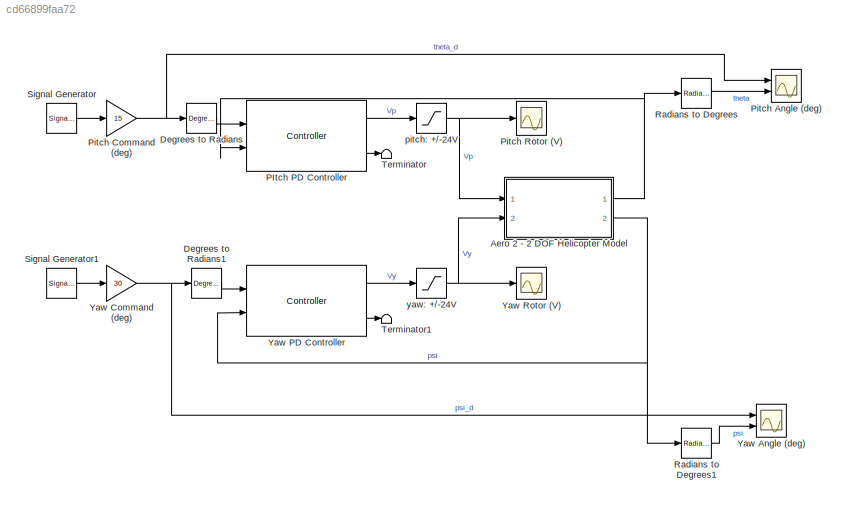
MODEL slx_cd66899faa72
KIND model
CONFIG AbsTol = auto
CONFIG EnableMultiTasking = off
CONFIG FixedStep = 0.002
CONFIG MaxStep = auto
CONFIG MinStep = auto
CONFIG RelTol = 1e-3
CONFIG SampleTimeConstraint = Unconstrained
CONFIG SolverName = ode4
CONFIG StartTime = 0.0
CONFIG StopTime = 30
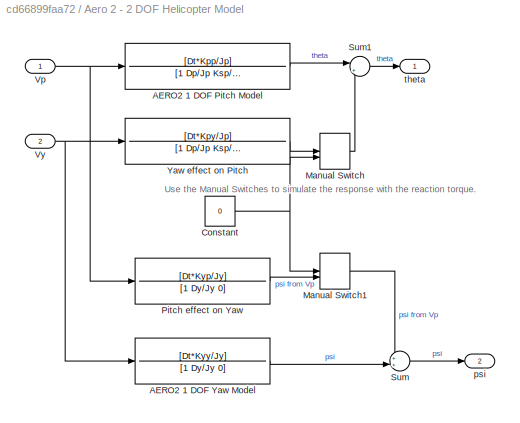
BLOCK [SubSystem] Aero 2 - 2 DOF Helicopter Model
  Ports = [2, 2]
  RequestExecContextInheritance = off
BLOCK [TransferFcn] Aero 2 - 2 DOF Helicopter Model/AERO2 1 DOF Pitch Model
  Denominator = [1 Dp/Jp Ksp/Jp]
  Numerator = [Dt*Kpp/Jp]
BLOCK [TransferFcn] Aero 2 - 2 DOF Helicopter Model/AERO2 1 DOF Yaw Model
  Denominator = [1 Dy/Jy 0]
  Numerator = [Dt*Kyy/Jy]
BLOCK [Constant] Aero 2 - 2 DOF Helicopter Model/Constant
  Value = 0
BLOCK [ManualSwitch] Aero 2 - 2 DOF Helicopter Model/Manual Switch
  CurrentSetting = 0
BLOCK [ManualSwitch] Aero 2 - 2 DOF Helicopter Model/Manual Switch1
BLOCK [TransferFcn] Aero 2 - 2 DOF Helicopter Model/Pitch effect on Yaw
  Denominator = [1 Dy/Jy 0]
  Numerator = [Dt*Kyp/Jy]
BLOCK [Sum] Aero 2 - 2 DOF Helicopter Model/Sum
  Inputs = ++|
  Ports = [2, 1]
BLOCK [Sum] Aero 2 - 2 DOF Helicopter Model/Sum1
  Inputs = |++
  Ports = [2, 1]
BLOCK [Inport] Aero 2 - 2 DOF Helicopter Model/Vp
BLOCK [Inport] Aero 2 - 2 DOF Helicopter Model/Vy
  Port = 2
BLOCK [TransferFcn] Aero 2 - 2 DOF Helicopter Model/Yaw effect on Pitch
  Denominator = [1 Dp/Jp Ksp/Jp]
  Numerator = [Dt*Kpy/Jp]
BLOCK [Outport] Aero 2 - 2 DOF Helicopter Model/psi
  Port = 2
BLOCK [Outport] Aero 2 - 2 DOF Helicopter Model/theta
BLOCK [Reference] Degrees to Radians  REF=simulink_extras/Transformations/Degrees to
Radians
  Ports = [1, 1]
  SourceBlock = simulink_extras/Transformations/Degrees to\nRadians
  SourceProductBaseCode = SL
  SourceType = DegreesToRadians
BLOCK [Reference] Degrees to Radians1  REF=simulink_extras/Transformations/Degrees to
Radians
  Ports = [1, 1]
  SourceBlock = simulink_extras/Transformations/Degrees to\nRadians
  SourceProductBaseCode = SL
  SourceType = DegreesToRadians
BLOCK [Reference] PItch PD Controller  REF=quarc_library/Continuous/Controller
  Ports = [2, 2]
  SourceBlock = quarc_library/Continuous/Controller
  SourceProductName = QUARC Targets
  SourceType = Controller
BLOCK [Scope] Pitch Angle (deg)
  Floating = off
  NumInputPorts = 2
  Ports = [2]
  ScopeSpecificationString = Simulink.scopes.TimeScopeBlockCfg('CurrentConfiguration', extmgr.ConfigurationSet(extmgr.Configuration('Core','General UI',true),extmgr.Configuration('Core','Source UI',true),extmgr.Configuration('Sources','WiredSimulink',true,'DataLoggingVariableName','Aero2_PD_Sim_Pitch','DataLoggingSaveFormat','StructureWithTime','DataLogging',true),extmgr.Configuration('Visuals','Time Domain',true,'SerializedD...<+1519ch>
BLOCK [Gain] Pitch Command (deg)
  Gain = 15
BLOCK [Scope] Pitch Rotor (V)
  Floating = off
  NumInputPorts = 1
  Ports = [1]
  ScopeSpecificationString = Simulink.scopes.TimeScopeBlockCfg('CurrentConfiguration', extmgr.ConfigurationSet(extmgr.Configuration('Core','General UI',true),extmgr.Configuration('Core','Source UI',true),extmgr.Configuration('Sources','WiredSimulink',true,'DataLoggingVariableName','Aero2_PD_Sim_Vp','DataLoggingMaxPoints','20000','DataLoggingSaveFormat','StructureWithTime','DataLoggingDecimation','1','DataLogging',true),extmgr...<+1739ch>
BLOCK [Reference] Radians to Degrees  REF=simulink_extras/Transformations/Radians
to Degrees
  Ports = [1, 1]
  SourceBlock = simulink_extras/Transformations/Radians\nto Degrees
  SourceProductBaseCode = SL
  SourceType = RadiansToDegrees
BLOCK [Reference] Radians to Degrees1  REF=simulink_extras/Transformations/Radians
to Degrees
  Ports = [1, 1]
  SourceBlock = simulink_extras/Transformations/Radians\nto Degrees
  SourceProductBaseCode = SL
  SourceType = RadiansToDegrees
BLOCK [SignalGenerator] Signal Generator
  Frequency = 0.05
  Ports = [0, 1]
  WaveForm = square
BLOCK [SignalGenerator] Signal Generator1
  Frequency = 0.04
  Ports = [0, 1]
  WaveForm = square
BLOCK [Terminator] Terminator
BLOCK [Terminator] Terminator1
BLOCK [Scope] Yaw Angle (deg)
  Floating = off
  NumInputPorts = 2
  Ports = [2]
  ScopeSpecificationString = Simulink.scopes.TimeScopeBlockCfg('CurrentConfiguration', extmgr.ConfigurationSet(extmgr.Configuration('Core','General UI',true),extmgr.Configuration('Core','Source UI',true),extmgr.Configuration('Sources','WiredSimulink',true,'DataLogging',true,'DataLoggingVariableName','Aero2_PD_Sim_Yaw','DataLoggingSaveFormat','StructureWithTime'),extmgr.Configuration('Visuals','Time Domain',true,'SerializedDis...<+1536ch>
BLOCK [Gain] Yaw Command (deg)
  Gain = 30
BLOCK [Reference] Yaw PD Controller  REF=quarc_library/Continuous/Controller
  Ports = [2, 2]
  SourceBlock = quarc_library/Continuous/Controller
  SourceProductName = QUARC Targets
  SourceType = Controller
BLOCK [Scope] Yaw Rotor (V)
  Floating = off
  NumInputPorts = 1
  Ports = [1]
  ScopeSpecificationString = Simulink.scopes.TimeScopeBlockCfg('CurrentConfiguration', extmgr.ConfigurationSet(extmgr.Configuration('Core','General UI',true),extmgr.Configuration('Core','Source UI',true),extmgr.Configuration('Sources','WiredSimulink',true,'DataLoggingVariableName','Aero2_PD_Sim_Vy','DataLogging',true,'DataLoggingSaveFormat','StructureWithTime'),extmgr.Configuration('Visuals','Time Domain',true,'SerializedDisp...<+1607ch>
BLOCK [Saturate] pitch: +//-24V
  LowerLimit = -24
  UpperLimit = 24
BLOCK [Saturate] yaw: +//-24V
  LowerLimit = -24
  UpperLimit = 24
ANNOTATION Aero 2 - 2 DOF Helicopter Model: Use the Manual Switches to simulate the response with the reaction torque.
LINE Aero 2 - 2 DOF Helicopter Model/AERO2 1 DOF Pitch Model:1 -> Aero 2 - 2 DOF Helicopter Model/Sum1:1
LINE Aero 2 - 2 DOF Helicopter Model/AERO2 1 DOF Yaw Model:1 -> Aero 2 - 2 DOF Helicopter Model/Sum:2
NET Aero 2 - 2 DOF Helicopter Model/Constant:1 -> Aero 2 - 2 DOF Helicopter Model/Manual Switch1:1, Aero 2 - 2 DOF Helicopter Model/Manual Switch:2
LINE Aero 2 - 2 DOF Helicopter Model/Manual Switch1:1 -> Aero 2 - 2 DOF Helicopter Model/Sum:1
LINE Aero 2 - 2 DOF Helicopter Model/Manual Switch:1 -> Aero 2 - 2 DOF Helicopter Model/Sum1:2
LINE Aero 2 - 2 DOF Helicopter Model/Pitch effect on Yaw:1 -> Aero 2 - 2 DOF Helicopter Model/Manual Switch1:2
LINE Aero 2 - 2 DOF Helicopter Model/Sum1:1 -> Aero 2 - 2 DOF Helicopter Model/theta:1
LINE Aero 2 - 2 DOF Helicopter Model/Sum:1 -> Aero 2 - 2 DOF Helicopter Model/psi:1
NET Aero 2 - 2 DOF Helicopter Model/Vp:1 -> Aero 2 - 2 DOF Helicopter Model/AERO2 1 DOF Pitch Model:1, Aero 2 - 2 DOF Helicopter Model/Pitch effect on Yaw:1
NET Aero 2 - 2 DOF Helicopter Model/Vy:1 -> Aero 2 - 2 DOF Helicopter Model/AERO2 1 DOF Yaw Model:1, Aero 2 - 2 DOF Helicopter Model/Yaw effect on Pitch:1
LINE Aero 2 - 2 DOF Helicopter Model/Yaw effect on Pitch:1 -> Aero 2 - 2 DOF Helicopter Model/Manual Switch:1
NET Aero 2 - 2 DOF Helicopter Model:1 -> PItch PD Controller:2, Radians to Degrees:1
NET Aero 2 - 2 DOF Helicopter Model:2 -> Radians to Degrees1:1, Yaw PD Controller:2
LINE Degrees to Radians1:1 -> Yaw PD Controller:1
LINE Degrees to Radians:1 -> PItch PD Controller:1
LINE PItch PD Controller:1 -> pitch: +//-24V:1
LINE PItch PD Controller:2 -> Terminator:1
NET Pitch Command (deg):1 -> Degrees to Radians:1, Pitch Angle (deg):1
LINE Radians to Degrees1:1 -> Yaw Angle (deg):2
LINE Radians to Degrees:1 -> Pitch Angle (deg):2
LINE Signal Generator1:1 -> Yaw Command (deg):1
LINE Signal Generator:1 -> Pitch Command (deg):1
NET Yaw Command (deg):1 -> Degrees to Radians1:1, Yaw Angle (deg):1
LINE Yaw PD Controller:1 -> yaw: +//-24V:1
LINE Yaw PD Controller:2 -> Terminator1:1
NET pitch: +//-24V:1 -> Aero 2 - 2 DOF Helicopter Model:1, Pitch Rotor (V):1
NET yaw: +//-24V:1 -> Aero 2 - 2 DOF Helicopter Model:2, Yaw Rotor (V):1
note: NET lines group one-source signal fan-out (src -> all destinations, sorted); 1:1 wires keep LINE
